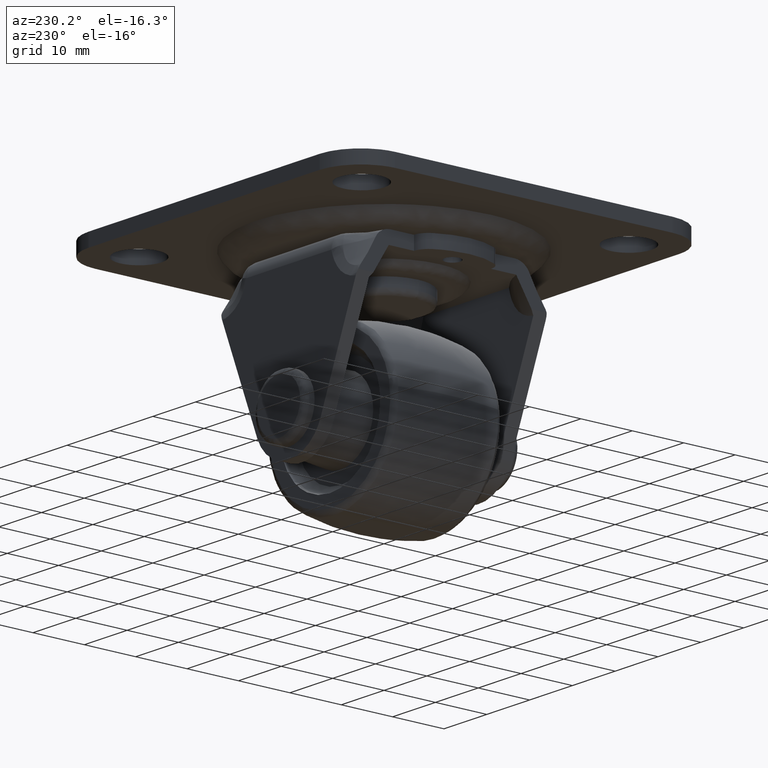
[diagram: clean part render]
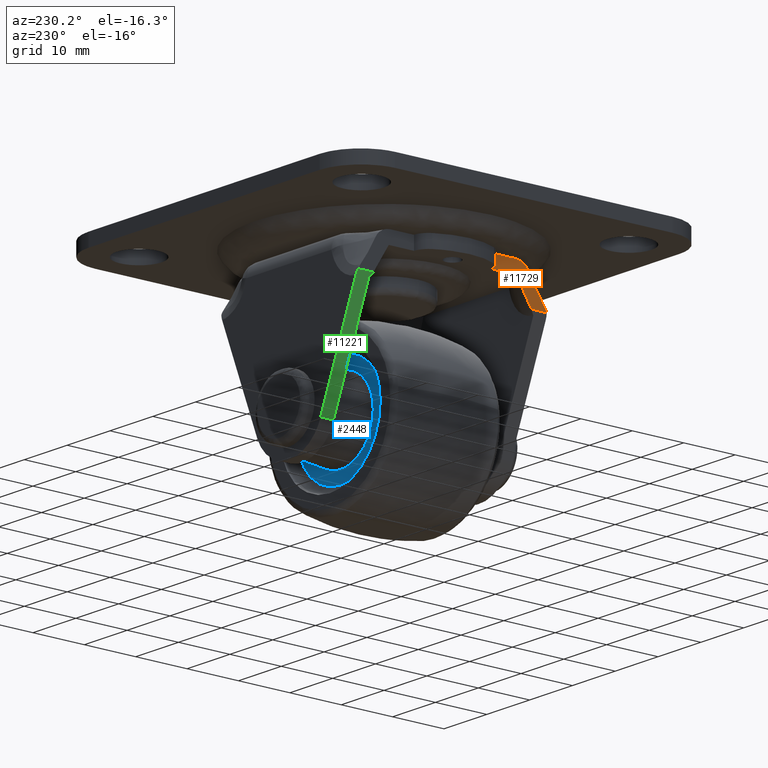
[diagram: same view with three faces highlighted in distinct colors, each labeled with its STEP entity id]
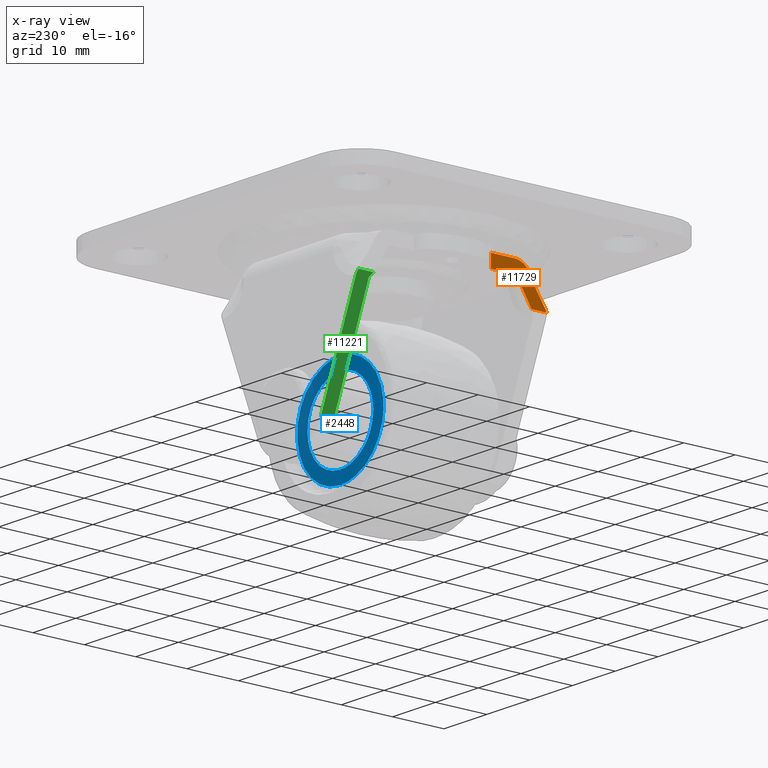
[diagram: x-ray of the same camera — body ghosted, the three highlighted faces saturated]
A machine part, auxiliary view with three faces highlighted in distinct colors.
The next image is the same camera in x-ray (body ghosted, the three faces saturated) — at least one of them is partly hidden behind the body in this view.
Their STEP definitions:

[orange] entity #11729 — the highlighted face is a freeform B-spline surface patch.
#9476=CARTESIAN_POINT('',(-15.999999999999700,-7.500000000000000,23.0));
#9477=VERTEX_POINT('',#9476);
#9489=CARTESIAN_POINT('',(-16.0,-7.500000000000000,25.500000000000000));
#9490=VERTEX_POINT('',#9489);
#9491=CARTESIAN_POINT('',(-16.0,-7.500000000000000,25.500000000000000));
#9492=CARTESIAN_POINT('',(-15.999999999999700,-7.500000000000000,23.0));
#9493=QUASI_UNIFORM_CURVE('',1,(#9491,#9492),.UNSPECIFIED.,.F.,.U.);
#9494=EDGE_CURVE('',#9490,#9477,#9493,.T.);
#10131=CARTESIAN_POINT('',(-16.000007999999848,-17.911828645612850,18.975027646231950));
#10132=VERTEX_POINT('',#10131);
#10146=CARTESIAN_POINT('',(-16.0,-18.324048593452449,18.199975219335151));
#10147=VERTEX_POINT('',#10146);
#10148=CARTESIAN_POINT('',(-16.0,-18.324048593452449,18.199975219335151));
#10149=CARTESIAN_POINT('',(-16.000002647615769,-18.225464596596598,18.476606481309641));
#10150=CARTESIAN_POINT('',(-16.000005352371211,-18.086071264283749,18.738634589625740));
#10151=CARTESIAN_POINT('',(-16.000007999999848,-17.911828645612850,18.975027646231950));
#10152=B_SPLINE_CURVE_WITH_KNOTS('',3,(#10148,#10149,#10150,#10151),.UNSPECIFIED.,.F.,.U.,(4,4),(3.702509E-009,0.881002063275399),.UNSPECIFIED.);
#10153=EDGE_CURVE('',#10147,#10132,#10152,.T.);
#10643=CARTESIAN_POINT('',(-16.000007999999848,-14.990088324998499,23.747183322970400));
#10644=VERTEX_POINT('',#10643);
#10653=CARTESIAN_POINT('',(-16.0,-12.082942980510859,25.500000000000000));
#10654=VERTEX_POINT('',#10653);
#10668=CARTESIAN_POINT('',(-16.000007999999848,-14.990088324998499,23.747183322970351));
#10669=CARTESIAN_POINT('',(-16.000007999999848,-14.923594005674619,23.881942514573041));
#10670=CARTESIAN_POINT('',(-16.0,-14.847642024141470,24.009773664032899));
#10671=CARTESIAN_POINT('',(-16.0,-14.678214953825799,24.252599722873889));
#10672=CARTESIAN_POINT('',(-16.0,-14.584734375835790,24.367590611157070));
#10673=CARTESIAN_POINT('',(-16.0,-14.431500710046130,24.530544649498871));
#10674=CARTESIAN_POINT('',(-16.0,-14.378020106261200,24.583464721997121));
#10675=CARTESIAN_POINT('',(-16.0,-14.267990792521690,24.684830843233840));
#10676=CARTESIAN_POINT('',(-16.0,-14.211446181540900,24.733312712017899));
#10677=CARTESIAN_POINT('',(-16.0,-14.037382098721331,24.872384382195630));
#10678=CARTESIAN_POINT('',(-16.0,-13.915454889096839,24.956632636250280));
#10679=CARTESIAN_POINT('',(-16.0,-13.723928367186600,25.070580560522139));
#10680=CARTESIAN_POINT('',(-16.0,-13.658641136259600,25.106484154247379));
#10681=CARTESIAN_POINT('',(-16.0,-13.525139398735989,25.174079780544389));
#10682=CARTESIAN_POINT('',(-16.0,-13.456974122920309,25.205720936846461));
#10683=CARTESIAN_POINT('',(-16.0,-13.251075561418521,25.293004053362250));
#10684=CARTESIAN_POINT('',(-16.0,-12.970889400663481,25.390102423448269));
#10685=CARTESIAN_POINT('',(-16.0,-12.679697935210079,25.449679639389430));
#10686=CARTESIAN_POINT('',(-16.000000000000011,-12.457037360207080,25.479814852272010));
#10687=CARTESIAN_POINT('',(-16.0,-12.382318146505300,25.487385632687349));
#10688=CARTESIAN_POINT('',(-16.0,-12.232862632868221,25.497467746576088));
#10689=CARTESIAN_POINT('',(-16.0,-12.157980643681970,25.500000000000000));
#10690=CARTESIAN_POINT('',(-16.0,-12.082942980510859,25.500000000000000));
#10691=B_SPLINE_CURVE_WITH_KNOTS('',3,(#10668,#10669,#10670,#10671,#10672,#10673,#10674,#10675,#10676,#10677,#10678,#10679,#10680,#10681,#10682,#10683,#10684,#10685,#10686,#10687,#10688,#10689,#10690),.UNSPECIFIED.,.F.,.U.,(4,2,2,2,2,2,2,2,1,2,2,4),(0.0,0.125000000000003,0.250000000000005,0.312500000000006,0.375000000000007,0.500000000000008,0.562500000000007,0.625000000000007,0.750000000000005,0.875000000000002,0.937500000000001,1.0),.UNSPECIFIED.);
#10692=EDGE_CURVE('',#10644,#10654,#10691,.T.);
#10908=CARTESIAN_POINT('',(-16.0,-15.380124219202299,18.199975219335151));
#10909=VERTEX_POINT('',#10908);
#10915=CARTESIAN_POINT('',(-16.0,-12.407579137795020,23.0));
#10916=VERTEX_POINT('',#10915);
#10917=CARTESIAN_POINT('',(-16.0,-12.407579137795020,23.0));
#10918=CARTESIAN_POINT('',(-15.999999999999959,-13.290327618128559,21.336324715760050));
#10919=CARTESIAN_POINT('',(-16.0,-14.284101480228021,19.731574582203208));
#10920=CARTESIAN_POINT('',(-16.0,-15.380124219202299,18.199975219335151));
#10921=B_SPLINE_CURVE_WITH_KNOTS('',3,(#10917,#10918,#10919,#10920),.UNSPECIFIED.,.F.,.U.,(4,4),(2.637206E-010,5.650089631842091),.UNSPECIFIED.);
#10922=EDGE_CURVE('',#10916,#10909,#10921,.T.);
#11317=CARTESIAN_POINT('',(-16.000007999999848,-14.990088324998499,23.747183322970400));
#11318=CARTESIAN_POINT('',(-16.000007999999891,-15.822427270177380,22.075356431915299));
#11319=CARTESIAN_POINT('',(-16.000007999999848,-16.801321559537129,20.476546747994021));
#11320=CARTESIAN_POINT('',(-16.000007999999848,-17.911828645612850,18.975027646231950));
#11321=B_SPLINE_CURVE_WITH_KNOTS('',3,(#11317,#11318,#11319,#11320),.UNSPECIFIED.,.F.,.U.,(4,4),(4.448708E-010,5.602670901660075),.UNSPECIFIED.);
#11322=EDGE_CURVE('',#10644,#10132,#11321,.T.);
#11504=CARTESIAN_POINT('',(-16.0,-15.380124219202299,18.199975219335151));
#11505=CARTESIAN_POINT('',(-16.0,-18.324048593452449,18.199975219335151));
#11506=QUASI_UNIFORM_CURVE('',1,(#11504,#11505),.UNSPECIFIED.,.F.,.U.);
#11507=EDGE_CURVE('',#10909,#10147,#11506,.T.);
#11594=CARTESIAN_POINT('',(-15.999999999999700,-7.500000000000000,23.0));
#11595=CARTESIAN_POINT('',(-16.0,-12.407579137795020,23.0));
#11596=QUASI_UNIFORM_CURVE('',1,(#11594,#11595),.UNSPECIFIED.,.F.,.U.);
#11597=EDGE_CURVE('',#9477,#10916,#11596,.T.);
#11660=CARTESIAN_POINT('',(-16.0,-7.500000000000000,25.500000000000000));
#11661=CARTESIAN_POINT('',(-16.0,-12.082942980510859,25.500000000000000));
#11662=QUASI_UNIFORM_CURVE('',1,(#11660,#11661),.UNSPECIFIED.,.F.,.U.);
#11663=EDGE_CURVE('',#9490,#10654,#11662,.T.);
#11714=CARTESIAN_POINT('',(-16.0,-18.864710206149990,25.864636171483710));
#11715=CARTESIAN_POINT('',(-16.0,-6.959338484076996,25.864636171483710));
#11716=CARTESIAN_POINT('',(-16.0,-18.864710206149990,17.835339896326438));
#11717=CARTESIAN_POINT('',(-16.0,-6.959338484076996,17.835339896326438));
#11718=B_SPLINE_SURFACE_WITH_KNOTS('',1,1,((#11714,#11716),(#11715,#11717)),.UNSPECIFIED.,.F.,.F.,.U.,(2,2),(2,2),(0.0,11.905371722072990),(0.0,8.029296275157275),.UNSPECIFIED.);
#11719=ORIENTED_EDGE('',*,*,#9494,.T.);
#11720=ORIENTED_EDGE('',*,*,#11597,.T.);
#11721=ORIENTED_EDGE('',*,*,#10922,.T.);
#11722=ORIENTED_EDGE('',*,*,#11507,.T.);
#11723=ORIENTED_EDGE('',*,*,#10153,.T.);
#11724=ORIENTED_EDGE('',*,*,#11322,.F.);
#11725=ORIENTED_EDGE('',*,*,#10692,.T.);
#11726=ORIENTED_EDGE('',*,*,#11663,.F.);
#11727=EDGE_LOOP('',(#11719,#11720,#11721,#11722,#11723,#11724,#11725,#11726));
#11728=FACE_OUTER_BOUND('',#11727,.T.);
#11729=ADVANCED_FACE('',(#11728),#11718,.T.);

[blue] entity #2448 — the highlighted face is a freeform B-spline surface patch.
#532=CARTESIAN_POINT('',(5.871608937538754,8.500007747195969,4.965638997075554));
#533=VERTEX_POINT('',#532);
#534=CARTESIAN_POINT('',(0.0,8.500000000000000,7.689821193483843));
#535=VERTEX_POINT('',#534);
#536=CARTESIAN_POINT('',(5.871608937538754,8.500007747195969,4.965638997075554));
#537=CARTESIAN_POINT('',(5.444835489824732,8.500007184096914,5.470614900940640));
#538=CARTESIAN_POINT('',(4.744948478982741,8.500006260642703,6.109010204260747));
#539=CARTESIAN_POINT('',(3.590978581314912,8.500004738056493,6.826951014591811));
#540=CARTESIAN_POINT('',(2.507556191972191,8.500003308552968,7.311916765339805));
#541=CARTESIAN_POINT('',(1.252679712534846,8.500001652827292,7.624779575374415));
#542=CARTESIAN_POINT('',(0.382758839864653,8.500000505024685,7.689832363767131));
#543=CARTESIAN_POINT('',(0.0,8.500000000000000,7.689821193483843));
#544=B_SPLINE_CURVE_WITH_KNOTS('',3,(#536,#537,#538,#539,#540,#541,#542,#543),.UNSPECIFIED.,.F.,.U.,(4,1,1,1,1,4),(0.000000013205305,1.983419481871318,2.818552584095046,4.071212302467552,5.532695526829686,6.680983623310119),.UNSPECIFIED.);
#545=EDGE_CURVE('',#533,#535,#544,.T.);
#594=CARTESIAN_POINT('',(-5.578002130582123,8.500000988579767,-5.293330401370808));
#595=VERTEX_POINT('',#594);
#601=CARTESIAN_POINT('',(-7.689825193483810,8.500000000000000,-0.000004560520381));
#602=VERTEX_POINT('',#601);
#603=CARTESIAN_POINT('',(-7.689825193483810,8.500000000000000,-0.000004560520381));
#604=CARTESIAN_POINT('',(-7.689883536261935,8.500000096541717,-0.516934796036489));
#605=CARTESIAN_POINT('',(-7.594429172793029,8.500000272585563,-1.459557292857492));
#606=CARTESIAN_POINT('',(-7.243006424580886,8.500000496815165,-2.660189039769197));
#607=CARTESIAN_POINT('',(-6.650054579149203,8.500000740186998,-3.963317557840215));
#608=CARTESIAN_POINT('',(-6.059640926991196,8.500000893864268,-4.786178566224572));
#609=CARTESIAN_POINT('',(-5.578002130582123,8.500000988579767,-5.293330401370808));
#610=B_SPLINE_CURVE_WITH_KNOTS('',3,(#603,#604,#605,#606,#607,#608,#609),.UNSPECIFIED.,.F.,.U.,(4,1,1,1,4),(0.000000018876300,1.550796131144494,2.827932332149567,3.740146606035852,5.838289136961045),.UNSPECIFIED.);
#611=EDGE_CURVE('',#602,#595,#610,.T.);
#613=CARTESIAN_POINT('',(0.0,8.500000000000000,7.689821193483843));
#614=CARTESIAN_POINT('',(-0.597675302266176,8.500000000000009,7.689943772979379));
#615=CARTESIAN_POINT('',(-1.635670356721414,8.500000000000027,7.568178891327753));
#616=CARTESIAN_POINT('',(-2.954724752963857,8.499999999999982,7.132369972165102));
#617=CARTESIAN_POINT('',(-4.133872449475565,8.499999999999984,6.529791105599974));
#618=CARTESIAN_POINT('',(-5.271832002106190,8.500000000000055,5.675021402175658));
#619=CARTESIAN_POINT('',(-6.312057448310705,8.499999999999965,4.483904638949151));
#620=CARTESIAN_POINT('',(-7.044271000439672,8.500000000000034,3.191325574958942));
#621=CARTESIAN_POINT('',(-7.557780919070888,8.499999999999853,1.698550035408417));
#622=CARTESIAN_POINT('',(-7.690004843259747,8.500000000000213,0.629136969796011));
#623=CARTESIAN_POINT('',(-7.689825193483810,8.500000000000000,-0.000004560520381));
#624=B_SPLINE_CURVE_WITH_KNOTS('',3,(#613,#614,#615,#616,#617,#618,#619,#620,#621,#622,#623),.UNSPECIFIED.,.F.,.U.,(4,1,1,1,1,1,1,1,4),(0.000000062280879,1.793007413780765,3.114176212302917,4.152236033235933,5.756539768630327,7.360773031235596,8.870678906076924,10.191847341094890,12.079225275075171),.UNSPECIFIED.);
#625=EDGE_CURVE('',#535,#602,#624,.T.);
#648=CARTESIAN_POINT('',(7.689825193483809,8.500000000000000,-0.000003439479578));
#649=VERTEX_POINT('',#648);
#650=CARTESIAN_POINT('',(7.689825193483809,8.500000000000000,-0.000003439479578));
#651=CARTESIAN_POINT('',(7.690031065021887,8.500001052792037,0.674794113216242));
#652=CARTESIAN_POINT('',(7.540806290907948,8.500002807212290,1.799307283353788));
#653=CARTESIAN_POINT('',(6.919687975805109,8.500005453594058,3.495532036685764));
#654=CARTESIAN_POINT('',(6.307517774912077,8.500006943535926,4.450525106250514));
#655=CARTESIAN_POINT('',(5.871608937538754,8.500007747195969,4.965638997075554));
#656=B_SPLINE_CURVE_WITH_KNOTS('',3,(#650,#651,#652,#653,#654,#655),.UNSPECIFIED.,.F.,.U.,(4,1,1,4),(0.000000017844466,2.024341493071769,3.373901372662646,5.398242847867812),.UNSPECIFIED.);
#657=EDGE_CURVE('',#649,#533,#656,.T.);
#659=CARTESIAN_POINT('',(0.0,8.500000000000000,-7.689829193483819));
#660=VERTEX_POINT('',#659);
#661=CARTESIAN_POINT('',(0.0,8.500000000000000,-7.689829193483819));
#662=CARTESIAN_POINT('',(0.786463050272413,8.500000000000034,-7.690229961878625));
#663=CARTESIAN_POINT('',(1.855728960669058,8.499999999999975,-7.524334532477720));
#664=CARTESIAN_POINT('',(3.269888575593736,8.500000000000011,-6.988617118195913));
#665=CARTESIAN_POINT('',(4.431672227601011,8.500000000000002,-6.349365527408186));
#666=CARTESIAN_POINT('',(5.588788228142896,8.500000000000011,-5.363490538805468));
#667=CARTESIAN_POINT('',(6.591465229822534,8.499999999999981,-4.062311216204863));
#668=CARTESIAN_POINT('',(7.188347780420439,8.499999999999998,-2.839314839428117));
#669=CARTESIAN_POINT('',(7.592085684690376,8.500000000000012,-1.446934670980380));
#670=CARTESIAN_POINT('',(7.689921677071461,8.500000000000055,-0.566217989539061));
#671=CARTESIAN_POINT('',(7.689825193483809,8.500000000000000,-0.000003439479578));
#672=B_SPLINE_CURVE_WITH_KNOTS('',3,(#661,#662,#663,#664,#665,#666,#667,#668,#669,#670,#671),.UNSPECIFIED.,.F.,.U.,(4,1,1,1,1,1,1,1,4),(0.000000062281655,2.359221461454956,3.208546799815862,4.529727737551667,6.322685201549371,7.738238457332107,9.436899535576579,10.380599483393450,12.079225275075180),.UNSPECIFIED.);
#673=EDGE_CURVE('',#660,#649,#672,.T.);
#675=CARTESIAN_POINT('',(-5.578002130582123,8.500000988579767,-5.293330401370808));
#676=CARTESIAN_POINT('',(-5.152979827839821,8.500000913253789,-5.741423404081130));
#677=CARTESIAN_POINT('',(-4.320299222743641,8.500000765679225,-6.429898501850301));
#678=CARTESIAN_POINT('',(-2.903365140560416,8.500000514558435,-7.170960533024210));
#679=CARTESIAN_POINT('',(-1.495209577433580,8.500000264993442,-7.593708757037629));
#680=CARTESIAN_POINT('',(-0.487571507742306,8.500000086411461,-7.689876507899326));
#681=CARTESIAN_POINT('',(0.0,8.500000000000000,-7.689829193483819));
#682=B_SPLINE_CURVE_WITH_KNOTS('',3,(#675,#676,#677,#678,#679,#680,#681),.UNSPECIFIED.,.F.,.U.,(4,1,1,1,4),(0.000000017285762,1.852781316680186,3.217974219664186,4.778216700229384,6.240935547570547),.UNSPECIFIED.);
#683=EDGE_CURVE('',#595,#660,#682,.T.);
#1816=CARTESIAN_POINT('',(-9.853211892590871,8.500000000000000,-2.209440556961128));
#1817=VERTEX_POINT('',#1816);
#1829=CARTESIAN_POINT('',(0.0,8.500000000000000,-10.097894591817150));
#1830=VERTEX_POINT('',#1829);
#1831=CARTESIAN_POINT('',(-9.853211892590871,8.500000000000000,-2.209440556961128));
#1832=CARTESIAN_POINT('',(-9.697938953642771,8.499999999999993,-2.902378378130580));
#1833=CARTESIAN_POINT('',(-9.297484164129813,8.500000000000014,-4.086098677692216));
#1834=CARTESIAN_POINT('',(-8.322650316084870,8.499999999999993,-5.826240531991950));
#1835=CARTESIAN_POINT('',(-7.194293691433887,8.500000000000002,-7.164488735680203));
#1836=CARTESIAN_POINT('',(-5.905083138905951,8.499999999999996,-8.230304306515194));
#1837=CARTESIAN_POINT('',(-4.512726087918908,8.500000000000028,-9.091408755572566));
#1838=CARTESIAN_POINT('',(-2.556283108755197,8.499999999999996,-9.872289774982278));
#1839=CARTESIAN_POINT('',(-0.923183160325363,8.499999999999996,-10.098237166758500));
#1840=CARTESIAN_POINT('',(0.0,8.500000000000000,-10.097894591817150));
#1841=B_SPLINE_CURVE_WITH_KNOTS('',3,(#1831,#1832,#1833,#1834,#1835,#1836,#1837,#1838,#1839,#1840),.UNSPECIFIED.,.F.,.U.,(4,1,1,1,1,1,1,4),(0.000000044825246,2.130352222886224,3.728139700138714,5.965043046454709,7.349740741714146,8.734496053468398,10.864868053070809,13.634335948448030),.UNSPECIFIED.);
#1842=EDGE_CURVE('',#1817,#1830,#1841,.T.);
#1844=CARTESIAN_POINT('',(9.963446714790738,8.500000000000000,1.642288300667887));
#1845=VERTEX_POINT('',#1844);
#1846=CARTESIAN_POINT('',(0.0,8.500000000000000,-10.097894591817150));
#1847=CARTESIAN_POINT('',(0.615625833683820,8.499999999999993,-10.097948493575990));
#1848=CARTESIAN_POINT('',(1.915291880473455,8.500000000000018,-9.978720571685624));
#1849=CARTESIAN_POINT('',(3.675110404035838,8.499999999999979,-9.464095647198116));
#1850=CARTESIAN_POINT('',(5.393120437706544,8.500000000000037,-8.604253354977836));
#1851=CARTESIAN_POINT('',(6.856722599478677,8.499999999999940,-7.498806472802834));
#1852=CARTESIAN_POINT('',(7.987220560333471,8.500000000000091,-6.237420036579761));
#1853=CARTESIAN_POINT('',(8.933408905724646,8.500000000000011,-4.809528900757695));
#1854=CARTESIAN_POINT('',(9.596258673788350,8.499999999999981,-3.322149732162393));
#1855=CARTESIAN_POINT('',(9.970826094863083,8.500000000000043,-1.766037641704689));
#1856=CARTESIAN_POINT('',(10.142527864256030,8.499999999999936,-0.176846945936770));
#1857=CARTESIAN_POINT('',(10.082237058491829,8.500000000000014,0.922376927905108));
#1858=CARTESIAN_POINT('',(9.963446714790738,8.500000000000000,1.642288300667887));
#1859=B_SPLINE_CURVE_WITH_KNOTS('',3,(#1846,#1847,#1848,#1849,#1850,#1851,#1852,#1853,#1854,#1855,#1856,#1857,#1858),.UNSPECIFIED.,.F.,.U.,(4,1,1,1,1,1,1,1,1,1,4),(0.000000079499824,1.846879011735902,3.899015525290450,5.472317144067747,7.592857106842505,9.371322240029492,10.534173073956881,12.723110529106989,14.227998844218931,15.322481939724780,17.511382794420129),.UNSPECIFIED.);
#1860=EDGE_CURVE('',#1830,#1845,#1859,.T.);
#1910=CARTESIAN_POINT('',(0.0,8.500000000000000,10.097886591817170));
#1911=VERTEX_POINT('',#1910);
#1912=CARTESIAN_POINT('',(9.963446714790738,8.500000000000000,1.642288300667887));
#1913=CARTESIAN_POINT('',(9.861188014976140,8.499999999999982,2.263105365638068));
#1914=CARTESIAN_POINT('',(9.549489909149795,8.500000000000066,3.449534844979788));
#1915=CARTESIAN_POINT('',(8.808467816154634,8.499999999999927,5.030749805518517));
#1916=CARTESIAN_POINT('',(7.755667085842570,8.500000000000066,6.559327346300898));
#1917=CARTESIAN_POINT('',(6.485921929321695,8.499999999999988,7.817091818530857));
#1918=CARTESIAN_POINT('',(4.886007205809682,8.499999999999936,8.897056959930756));
#1919=CARTESIAN_POINT('',(3.390331734665320,8.500000000000112,9.561080883921413));
#1920=CARTESIAN_POINT('',(1.702466140945794,8.499999999999950,9.997232347557386));
#1921=CARTESIAN_POINT('',(0.629185994946044,8.500000000000044,10.097950521914591));
#1922=CARTESIAN_POINT('',(0.0,8.500000000000000,10.097886591817170));
#1923=B_SPLINE_CURVE_WITH_KNOTS('',3,(#1912,#1913,#1914,#1915,#1916,#1917,#1918,#1919,#1920,#1921,#1922),.UNSPECIFIED.,.F.,.U.,(4,1,1,1,1,1,1,1,4),(0.000000037351121,1.887540706996880,3.664079584257939,5.218544205745033,7.439161015139623,8.993644490430450,10.992237083912530,12.324627307872881,14.212181179733509),.UNSPECIFIED.);
#1924=EDGE_CURVE('',#1845,#1911,#1923,.T.);
#1926=CARTESIAN_POINT('',(0.0,8.500000000000000,10.097886591817170));
#1927=CARTESIAN_POINT('',(-0.683062591649148,8.500000000000005,10.097982856582060));
#1928=CARTESIAN_POINT('',(-1.813592557134028,8.499999999999988,9.982719312426927));
#1929=CARTESIAN_POINT('',(-3.269857084140259,8.500000000000009,9.580577673710700));
#1930=CARTESIAN_POINT('',(-4.534394898071674,8.499999999999968,9.058030232234506));
#1931=CARTESIAN_POINT('',(-6.024300565051814,8.500000000000105,8.188619748757128));
#1932=CARTESIAN_POINT('',(-7.441232373913183,8.499999999999893,6.926364034423842));
#1933=CARTESIAN_POINT('',(-8.504595478779926,8.500000000000126,5.508536375116916));
#1934=CARTESIAN_POINT('',(-9.195006361945559,8.499999999999851,4.245277564338111));
#1935=CARTESIAN_POINT('',(-9.712103361755979,8.500000000000041,2.901005216646973));
#1936=CARTESIAN_POINT('',(-10.078102328307240,8.500000000000016,1.239453084534330));
#1937=CARTESIAN_POINT('',(-10.139073254574280,8.499999999999993,-0.511432165775054));
#1938=CARTESIAN_POINT('',(-9.966603941850469,8.500000000000000,-1.703831570153343));
#1939=CARTESIAN_POINT('',(-9.853211892590871,8.500000000000000,-2.209440556961128));
#1940=B_SPLINE_CURVE_WITH_KNOTS('',3,(#1926,#1927,#1928,#1929,#1930,#1931,#1932,#1933,#1934,#1935,#1936,#1937,#1938,#1939),.UNSPECIFIED.,.F.,.U.,(4,1,1,1,1,1,1,1,1,1,1,4),(0.000000087359947,2.049168486696326,3.391718582664405,4.522306439290274,6.147515865496319,8.549988193098573,10.175178817406350,11.447080074742050,12.860305745063110,14.485519873183391,16.534709616753069,18.089223070816370),.UNSPECIFIED.);
#1941=EDGE_CURVE('',#1911,#1817,#1940,.T.);
#2429=CARTESIAN_POINT('',(-11.104826574781720,8.500000000000000,11.106666391547000));
#2430=CARTESIAN_POINT('',(-11.104826574781720,8.500000000000000,-11.106674391546971));
#2431=CARTESIAN_POINT('',(11.106034521226430,8.500000000000000,11.106666391547000));
#2432=CARTESIAN_POINT('',(11.106034521226430,8.500000000000000,-11.106674391546971));
#2433=B_SPLINE_SURFACE_WITH_KNOTS('',1,1,((#2429,#2431),(#2430,#2432)),.UNSPECIFIED.,.F.,.F.,.U.,(2,2),(2,2),(0.0,22.213340783093969),(0.0,22.210861096008149),.UNSPECIFIED.);
#2434=ORIENTED_EDGE('',*,*,#1842,.F.);
#2435=ORIENTED_EDGE('',*,*,#1941,.F.);
#2436=ORIENTED_EDGE('',*,*,#1924,.F.);
#2437=ORIENTED_EDGE('',*,*,#1860,.F.);
#2438=EDGE_LOOP('',(#2434,#2435,#2436,#2437));
#2439=FACE_OUTER_BOUND('',#2438,.T.);
#2440=ORIENTED_EDGE('',*,*,#673,.T.);
#2441=ORIENTED_EDGE('',*,*,#657,.T.);
#2442=ORIENTED_EDGE('',*,*,#545,.T.);
#2443=ORIENTED_EDGE('',*,*,#625,.T.);
#2444=ORIENTED_EDGE('',*,*,#611,.T.);
#2445=ORIENTED_EDGE('',*,*,#683,.T.);
#2446=EDGE_LOOP('',(#2440,#2441,#2442,#2443,#2444,#2445));
#2447=FACE_BOUND('',#2446,.T.);
#2448=ADVANCED_FACE('',(#2439,#2447),#2433,.F.);

[green] entity #11221 — the highlighted face is a freeform B-spline surface patch.
#10229=CARTESIAN_POINT('',(-15.604113263857400,18.499320193114549,17.222226789682850));
#10230=VERTEX_POINT('',#10229);
#10244=CARTESIAN_POINT('',(-16.0,18.324051557263751,18.199975219335151));
#10245=VERTEX_POINT('',#10244);
#10246=CARTESIAN_POINT('',(-16.0,18.324051557263751,18.199975219335151));
#10247=CARTESIAN_POINT('',(-15.872834810507380,18.439794981776600,17.885906691694341));
#10248=CARTESIAN_POINT('',(-15.738495848306160,18.499318650321008,17.554120609106288));
#10249=CARTESIAN_POINT('',(-15.604113263857400,18.499320193114549,17.222226789682850));
#10250=B_SPLINE_CURVE_WITH_KNOTS('',3,(#10246,#10247,#10248,#10249),.UNSPECIFIED.,.F.,.U.,(4,4),(3.493166E-009,1.074156403103570),.UNSPECIFIED.);
#10251=EDGE_CURVE('',#10245,#10230,#10250,.T.);
#10845=CARTESIAN_POINT('',(-15.667682626368251,15.999315875182150,17.379228372950699));
#10846=VERTEX_POINT('',#10845);
#10875=CARTESIAN_POINT('',(-16.0,15.380130175476200,18.199975219335151));
#10876=VERTEX_POINT('',#10875);
#10884=CARTESIAN_POINT('',(-15.667682626368251,15.999315875182150,17.379228372950699));
#10885=CARTESIAN_POINT('',(-16.0,15.380130175476200,18.199975219335151));
#10886=QUASI_UNIFORM_CURVE('',1,(#10884,#10885),.UNSPECIFIED.,.F.,.U.);
#10887=EDGE_CURVE('',#10846,#10876,#10886,.T.);
#11040=CARTESIAN_POINT('',(-7.415235999999910,15.999876297786100,-3.002401000000000));
#11041=VERTEX_POINT('',#11040);
#11042=CARTESIAN_POINT('',(-7.415235999999910,15.999876297786100,-3.002401000000000));
#11043=CARTESIAN_POINT('',(-15.667682626368251,15.999315875182150,17.379228372950699));
#11044=QUASI_UNIFORM_CURVE('',1,(#11042,#11043),.UNSPECIFIED.,.F.,.U.);
#11045=EDGE_CURVE('',#11041,#10846,#11044,.T.);
#11194=CARTESIAN_POINT('',(-6.986426974250956,15.224298504245260,-4.061459850094944));
#11195=CARTESIAN_POINT('',(-16.428809179256088,15.224298504245260,19.259034448557490));
#11196=CARTESIAN_POINT('',(-6.986426974250956,18.655707244663741,-4.061459850094944));
#11197=CARTESIAN_POINT('',(-16.428809179256088,18.655707244663741,19.259034448557490));
#11198=B_SPLINE_SURFACE_WITH_KNOTS('',1,1,((#11194,#11196),(#11195,#11197)),.UNSPECIFIED.,.F.,.F.,.U.,(2,2),(2,2),(0.0,25.159571459762152),(0.0,3.431408740418485),.UNSPECIFIED.);
#11199=CARTESIAN_POINT('',(-16.0,18.324051557263751,18.199975219335151));
#11200=CARTESIAN_POINT('',(-16.0,15.380130175476200,18.199975219335151));
#11201=QUASI_UNIFORM_CURVE('',1,(#11199,#11200),.UNSPECIFIED.,.F.,.U.);
#11202=EDGE_CURVE('',#10245,#10876,#11201,.T.);
#11203=ORIENTED_EDGE('',*,*,#11202,.F.);
#11204=ORIENTED_EDGE('',*,*,#10251,.T.);
#11205=CARTESIAN_POINT('',(-7.415228080747780,18.499876298643098,-3.002397793524800));
#11206=VERTEX_POINT('',#11205);
#11207=CARTESIAN_POINT('',(-7.415228080747780,18.499876298643098,-3.002397793524800));
#11208=CARTESIAN_POINT('',(-15.604113263857400,18.499320193114549,17.222226789682850));
#11209=QUASI_UNIFORM_CURVE('',1,(#11207,#11208),.UNSPECIFIED.,.F.,.U.);
#11210=EDGE_CURVE('',#11206,#10230,#11209,.T.);
#11211=ORIENTED_EDGE('',*,*,#11210,.F.);
#11212=CARTESIAN_POINT('',(-7.415228080747780,18.499876298643098,-3.002397793524800));
#11213=CARTESIAN_POINT('',(-7.415235999999910,15.999876297786100,-3.002401000000000));
#11214=QUASI_UNIFORM_CURVE('',1,(#11212,#11213),.UNSPECIFIED.,.F.,.U.);
#11215=EDGE_CURVE('',#11206,#11041,#11214,.T.);
#11216=ORIENTED_EDGE('',*,*,#11215,.T.);
#11217=ORIENTED_EDGE('',*,*,#11045,.T.);
#11218=ORIENTED_EDGE('',*,*,#10887,.T.);
#11219=EDGE_LOOP('',(#11203,#11204,#11211,#11216,#11217,#11218));
#11220=FACE_OUTER_BOUND('',#11219,.T.);
#11221=ADVANCED_FACE('',(#11220),#11198,.T.);